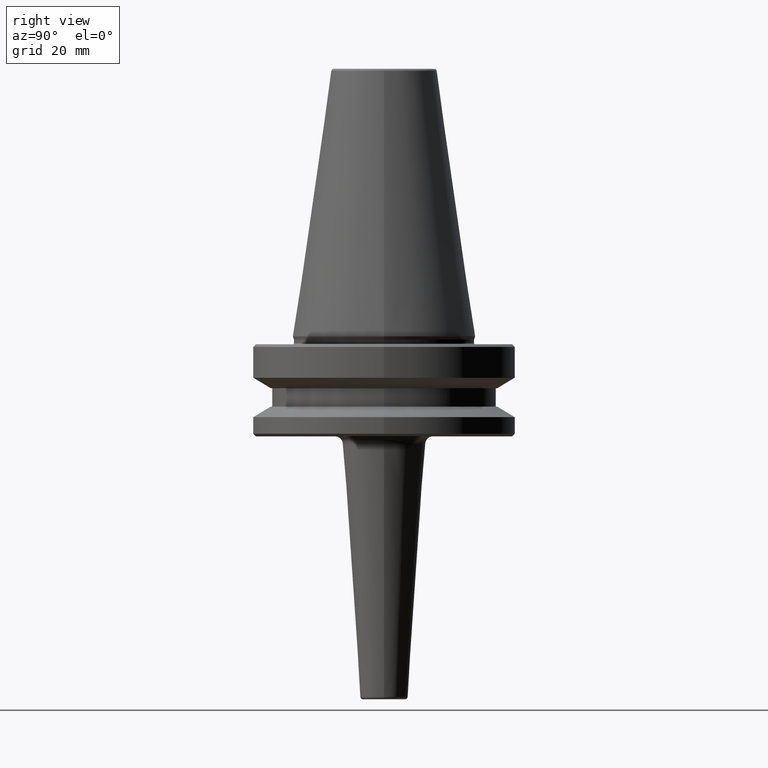
[diagram: clean part render]
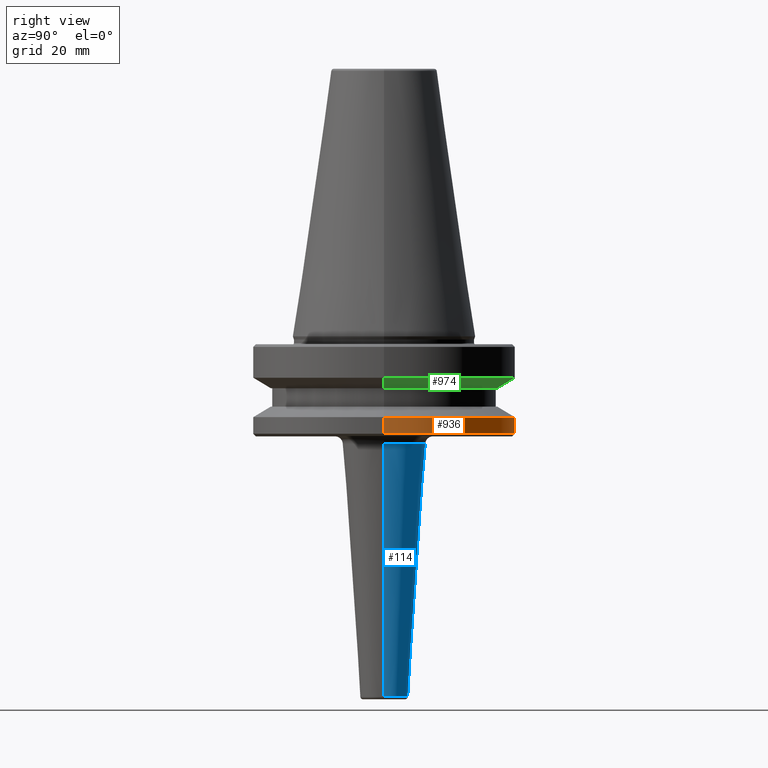
[diagram: same view with three faces highlighted in distinct colors, each labeled with its STEP entity id]
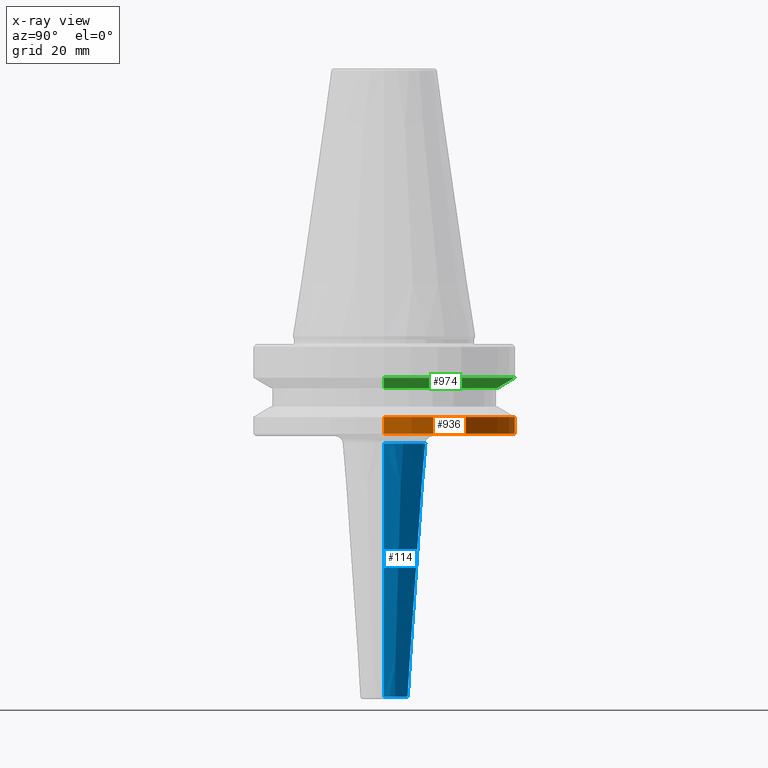
[diagram: x-ray of the same camera — body ghosted, the three highlighted faces saturated]
A machine part, right view with three faces highlighted in distinct colors.
The next image is the same camera in x-ray (body ghosted, the three faces saturated) — at least one of them is partly hidden behind the body in this view.
Their STEP definitions:

[orange] entity #936 — the highlighted cylindrical surface (partial cylindrical patch) has radius 50 mm, axis along (-0, -0, 1).
#43 = CARTESIAN_POINT ( 'NONE',  ( 50.00000000000000000, 0.0000000000000000000, -30.69977999677324500 ) ) ;
#84 = DIRECTION ( 'NONE',  ( 1.000000000000000000, 0.0000000000000000000, 0.0000000000000000000 ) ) ;
#113 = LINE ( 'NONE', #390, #139 ) ;
#128 = CARTESIAN_POINT ( 'NONE',  ( 50.00000000000000000, 0.0000000000000000000, -37.00000000000002100 ) ) ;
#129 = EDGE_CURVE ( 'NONE', #371, #466, #837, .T. ) ;
#139 = VECTOR ( 'NONE', #315, 1000.000000000000000 ) ;
#144 = ORIENTED_EDGE ( 'NONE', *, *, #332, .T. ) ;
#256 = AXIS2_PLACEMENT_3D ( 'NONE', #278, #972, #921 ) ;
#278 = CARTESIAN_POINT ( 'NONE',  ( 0.0000000000000000000, 0.0000000000000000000, -37.00000000000002100 ) ) ;
#295 = FACE_OUTER_BOUND ( 'NONE', #710, .T. ) ;
#315 = DIRECTION ( 'NONE',  ( -0.0000000000000000000, -0.0000000000000000000, 1.000000000000000000 ) ) ;
#332 = EDGE_CURVE ( 'NONE', #709, #632, #544, .T. ) ;
#360 = CARTESIAN_POINT ( 'NONE',  ( -50.00000000000000000, 6.123233995736766100E-015, -30.69977999677324500 ) ) ;
#369 = VECTOR ( 'NONE', #856, 1000.000000000000000 ) ;
#371 = VERTEX_POINT ( 'NONE', #43 ) ;
#390 = CARTESIAN_POINT ( 'NONE',  ( -50.00000000000000000, 6.123233995736766100E-015, 124.5046326327850600 ) ) ;
#448 = EDGE_CURVE ( 'NONE', #709, #371, #969, .T. ) ;
#466 = VERTEX_POINT ( 'NONE', #360 ) ;
#524 = AXIS2_PLACEMENT_3D ( 'NONE', #566, #940, #84 ) ;
#544 = CIRCLE ( 'NONE', #256, 50.00000000000000000 ) ;
#566 = CARTESIAN_POINT ( 'NONE',  ( 0.0000000000000000000, 0.0000000000000000000, 124.5046326327850600 ) ) ;
#576 = CARTESIAN_POINT ( 'NONE',  ( 0.0000000000000000000, 0.0000000000000000000, -30.69977999677324500 ) ) ;
#579 = DIRECTION ( 'NONE',  ( -0.0000000000000000000, -0.0000000000000000000, 1.000000000000000000 ) ) ;
#582 = DIRECTION ( 'NONE',  ( 1.000000000000000000, 0.0000000000000000000, 0.0000000000000000000 ) ) ;
#619 = AXIS2_PLACEMENT_3D ( 'NONE', #576, #579, #582 ) ;
#632 = VERTEX_POINT ( 'NONE', #763 ) ;
#697 = CARTESIAN_POINT ( 'NONE',  ( 50.00000000000000000, 0.0000000000000000000, 124.5046326327850600 ) ) ;
#709 = VERTEX_POINT ( 'NONE', #128 ) ;
#710 = EDGE_LOOP ( 'NONE', ( #144, #786, #901, #912 ) ) ;
#763 = CARTESIAN_POINT ( 'NONE',  ( -50.00000000000000000, 6.123233995736766100E-015, -37.00000000000002100 ) ) ;
#786 = ORIENTED_EDGE ( 'NONE', *, *, #935, .T. ) ;
#837 = CIRCLE ( 'NONE', #619, 50.00000000000000000 ) ;
#856 = DIRECTION ( 'NONE',  ( -0.0000000000000000000, -0.0000000000000000000, 1.000000000000000000 ) ) ;
#894 = CYLINDRICAL_SURFACE ( 'NONE', #524, 50.00000000000000000 ) ;
#901 = ORIENTED_EDGE ( 'NONE', *, *, #129, .F. ) ;
#912 = ORIENTED_EDGE ( 'NONE', *, *, #448, .F. ) ;
#921 = DIRECTION ( 'NONE',  ( 1.000000000000000000, 0.0000000000000000000, 0.0000000000000000000 ) ) ;
#935 = EDGE_CURVE ( 'NONE', #632, #466, #113, .T. ) ;
#936 = ADVANCED_FACE ( 'NONE', ( #295 ), #894, .T. ) ;
#940 = DIRECTION ( 'NONE',  ( -0.0000000000000000000, -0.0000000000000000000, 1.000000000000000000 ) ) ;
#969 = LINE ( 'NONE', #697, #369 ) ;
#972 = DIRECTION ( 'NONE',  ( -0.0000000000000000000, -0.0000000000000000000, 1.000000000000000000 ) ) ;

[blue] entity #114 — the highlighted conical surface has half-angle 4.004 deg.
#86 = VERTEX_POINT ( 'NONE', #658 ) ;
#91 = LINE ( 'NONE', #684, #298 ) ;
#109 = EDGE_CURVE ( 'NONE', #495, #702, #980, .T. ) ;
#114 = ADVANCED_FACE ( 'NONE', ( #330 ), #222, .T. ) ;
#148 = ORIENTED_EDGE ( 'NONE', *, *, #217, .F. ) ;
#171 = AXIS2_PLACEMENT_3D ( 'NONE', #695, #208, #775 ) ;
#208 = DIRECTION ( 'NONE',  ( -0.0000000000000000000, -0.0000000000000000000, 1.000000000000000000 ) ) ;
#217 = EDGE_CURVE ( 'NONE', #86, #702, #91, .T. ) ;
#222 = CONICAL_SURFACE ( 'NONE', #482, 16.00000000000004300, 0.06988600163464235600 ) ;
#223 = ORIENTED_EDGE ( 'NONE', *, *, #817, .T. ) ;
#298 = VECTOR ( 'NONE', #879, 1000.000000000000200 ) ;
#330 = FACE_OUTER_BOUND ( 'NONE', #629, .T. ) ;
#373 = CARTESIAN_POINT ( 'NONE',  ( -16.00000000000004300, 1.959434878635770300E-015, -38.00000000000000700 ) ) ;
#381 = VECTOR ( 'NONE', #446, 1000.000000000000200 ) ;
#425 = AXIS2_PLACEMENT_3D ( 'NONE', #622, #528, #531 ) ;
#446 = DIRECTION ( 'NONE',  ( -0.06982912769991372900, 8.551601772495111700E-018, 0.9975589671416267300 ) ) ;
#482 = AXIS2_PLACEMENT_3D ( 'NONE', #518, #515, #525 ) ;
#495 = VERTEX_POINT ( 'NONE', #662 ) ;
#515 = DIRECTION ( 'NONE',  ( -0.0000000000000000000, -0.0000000000000000000, 1.000000000000000000 ) ) ;
#518 = CARTESIAN_POINT ( 'NONE',  ( 0.0000000000000000000, 0.0000000000000000000, -38.00000000000000700 ) ) ;
#525 = DIRECTION ( 'NONE',  ( 1.000000000000000000, 0.0000000000000000000, 0.0000000000000000000 ) ) ;
#528 = DIRECTION ( 'NONE',  ( 0.0000000000000000000, 0.0000000000000000000, -1.000000000000000000 ) ) ;
#531 = DIRECTION ( 'NONE',  ( -1.000000000000000000, 0.0000000000000000000, 0.0000000000000000000 ) ) ;
#540 = LINE ( 'NONE', #373, #381 ) ;
#620 = CARTESIAN_POINT ( 'NONE',  ( -9.065111961061072400, 1.110156034702582700E-015, -137.0698291276999000 ) ) ;
#622 = CARTESIAN_POINT ( 'NONE',  ( 0.0000000000000000000, 0.0000000000000000000, -40.79051261690025100 ) ) ;
#624 = CIRCLE ( 'NONE', #171, 9.065111961061063500 ) ;
#629 = EDGE_LOOP ( 'NONE', ( #860, #223, #694, #148 ) ) ;
#658 = CARTESIAN_POINT ( 'NONE',  ( 9.065111961061072400, 0.0000000000000000000, -137.0698291276999000 ) ) ;
#662 = CARTESIAN_POINT ( 'NONE',  ( -15.80466411681702400, 1.935513132225900000E-015, -40.79051261690025100 ) ) ;
#684 = CARTESIAN_POINT ( 'NONE',  ( 16.00000000000004300, 0.0000000000000000000, -38.00000000000000700 ) ) ;
#693 = EDGE_CURVE ( 'NONE', #86, #701, #624, .T. ) ;
#694 = ORIENTED_EDGE ( 'NONE', *, *, #109, .T. ) ;
#695 = CARTESIAN_POINT ( 'NONE',  ( 0.0000000000000000000, 0.0000000000000000000, -137.0698291276999000 ) ) ;
#701 = VERTEX_POINT ( 'NONE', #620 ) ;
#702 = VERTEX_POINT ( 'NONE', #987 ) ;
#775 = DIRECTION ( 'NONE',  ( 1.000000000000000000, 0.0000000000000000000, 0.0000000000000000000 ) ) ;
#817 = EDGE_CURVE ( 'NONE', #701, #495, #540, .T. ) ;
#860 = ORIENTED_EDGE ( 'NONE', *, *, #693, .T. ) ;
#879 = DIRECTION ( 'NONE',  ( 0.06982912769991372900, 0.0000000000000000000, 0.9975589671416267300 ) ) ;
#980 = CIRCLE ( 'NONE', #425, 15.80466411681702400 ) ;
#987 = CARTESIAN_POINT ( 'NONE',  ( 15.80466411681702400, 0.0000000000000000000, -40.79051261690025100 ) ) ;

[green] entity #974 — the highlighted conical surface has half-angle 60 deg.
#8 = CARTESIAN_POINT ( 'NONE',  ( -43.07217782649103600, 5.699027233244276000E-015, -19.70000000000001000 ) ) ;
#20 = DIRECTION ( 'NONE',  ( 1.000000000000000000, 0.0000000000000000000, 0.0000000000000000000 ) ) ;
#50 = CARTESIAN_POINT ( 'NONE',  ( -43.07217782649103600, 5.274820470751785100E-015, -19.70000000000001000 ) ) ;
#56 = DIRECTION ( 'NONE',  ( 0.8660254037844388200, 0.0000000000000000000, 0.4999999999999997200 ) ) ;
#87 = CARTESIAN_POINT ( 'NONE',  ( 50.00000000000000000, 0.0000000000000000000, -15.70022000322675400 ) ) ;
#117 = LINE ( 'NONE', #50, #268 ) ;
#164 = EDGE_CURVE ( 'NONE', #811, #889, #349, .T. ) ;
#167 = DIRECTION ( 'NONE',  ( -0.0000000000000000000, -0.0000000000000000000, 1.000000000000000000 ) ) ;
#178 = DIRECTION ( 'NONE',  ( 1.000000000000000000, 0.0000000000000000000, 0.0000000000000000000 ) ) ;
#189 = CARTESIAN_POINT ( 'NONE',  ( 0.0000000000000000000, 0.0000000000000000000, -15.70022000322675400 ) ) ;
#249 = CONICAL_SURFACE ( 'NONE', #454, 43.07217782649103600, 1.047197551196598100 ) ;
#260 = EDGE_CURVE ( 'NONE', #889, #567, #117, .T. ) ;
#268 = VECTOR ( 'NONE', #274, 1000.000000000000000 ) ;
#272 = CARTESIAN_POINT ( 'NONE',  ( 0.0000000000000000000, 0.0000000000000000000, -19.70000000000001000 ) ) ;
#274 = DIRECTION ( 'NONE',  ( -0.8660254037844388200, 1.060575238724907200E-016, 0.4999999999999997200 ) ) ;
#316 = DIRECTION ( 'NONE',  ( -0.0000000000000000000, -0.0000000000000000000, 1.000000000000000000 ) ) ;
#349 = CIRCLE ( 'NONE', #774, 43.07217782649103600 ) ;
#356 = LINE ( 'NONE', #847, #663 ) ;
#370 = EDGE_CURVE ( 'NONE', #977, #567, #849, .T. ) ;
#401 = ORIENTED_EDGE ( 'NONE', *, *, #260, .T. ) ;
#454 = AXIS2_PLACEMENT_3D ( 'NONE', #463, #316, #20 ) ;
#463 = CARTESIAN_POINT ( 'NONE',  ( 0.0000000000000000000, 0.0000000000000000000, -19.70000000000001000 ) ) ;
#527 = EDGE_LOOP ( 'NONE', ( #577, #401, #999, #634 ) ) ;
#530 = AXIS2_PLACEMENT_3D ( 'NONE', #189, #167, #839 ) ;
#539 = CARTESIAN_POINT ( 'NONE',  ( 43.07217782649103600, 0.0000000000000000000, -19.70000000000001000 ) ) ;
#549 = CARTESIAN_POINT ( 'NONE',  ( -50.00000000000000000, 6.123233995736766900E-015, -15.70022000322675400 ) ) ;
#567 = VERTEX_POINT ( 'NONE', #549 ) ;
#577 = ORIENTED_EDGE ( 'NONE', *, *, #164, .T. ) ;
#634 = ORIENTED_EDGE ( 'NONE', *, *, #747, .F. ) ;
#663 = VECTOR ( 'NONE', #56, 1000.000000000000000 ) ;
#705 = FACE_OUTER_BOUND ( 'NONE', #527, .T. ) ;
#746 = DIRECTION ( 'NONE',  ( -0.0000000000000000000, -0.0000000000000000000, 1.000000000000000000 ) ) ;
#747 = EDGE_CURVE ( 'NONE', #811, #977, #356, .T. ) ;
#774 = AXIS2_PLACEMENT_3D ( 'NONE', #272, #746, #178 ) ;
#811 = VERTEX_POINT ( 'NONE', #539 ) ;
#839 = DIRECTION ( 'NONE',  ( 1.000000000000000000, 0.0000000000000000000, 0.0000000000000000000 ) ) ;
#847 = CARTESIAN_POINT ( 'NONE',  ( 43.07217782649103600, 0.0000000000000000000, -19.70000000000001000 ) ) ;
#849 = CIRCLE ( 'NONE', #530, 50.00000000000000000 ) ;
#889 = VERTEX_POINT ( 'NONE', #8 ) ;
#974 = ADVANCED_FACE ( 'NONE', ( #705 ), #249, .T. ) ;
#977 = VERTEX_POINT ( 'NONE', #87 ) ;
#999 = ORIENTED_EDGE ( 'NONE', *, *, #370, .F. ) ;